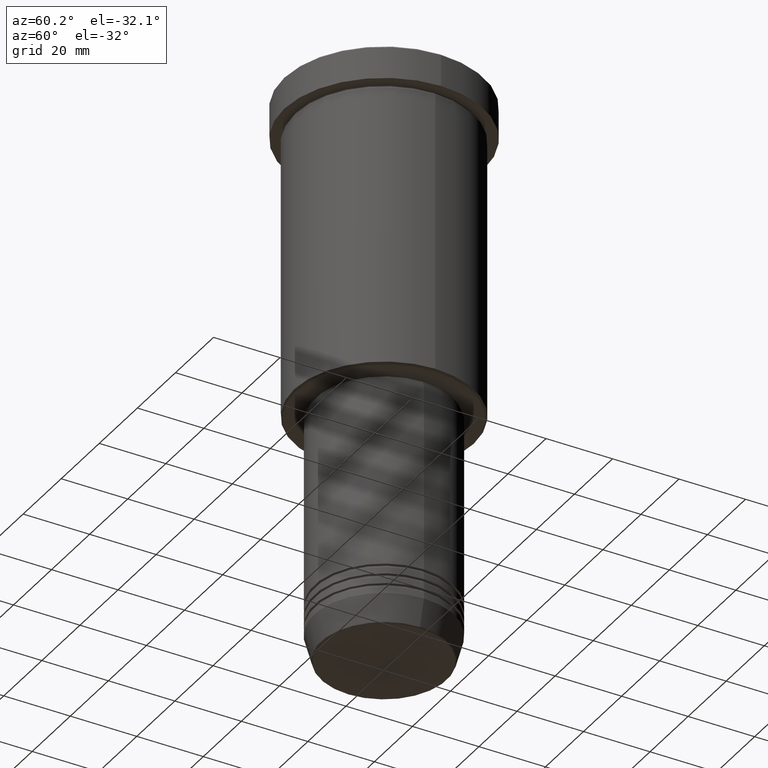
[diagram: clean part render]
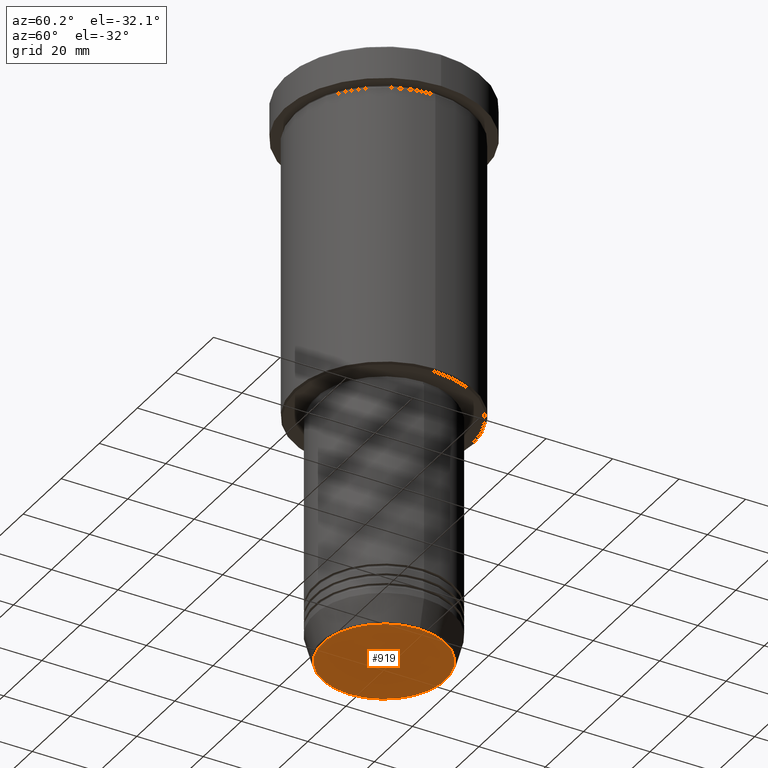
[diagram: same view with one face highlighted and labeled with its STEP entity id]
A machine part, auxiliary view. The second image highlights one B-rep face of the part: STEP entity #919.
In plain terms, the highlighted planar face has unit normal (0, -0, 1).
Its self-contained STEP definition (entity closure, byte-faithful):
#31 = AXIS2_PLACEMENT_3D ( 'NONE', #1020, #1114, #116 ) ;
#61 = DIRECTION ( 'NONE',  ( 1.000000000000000000, 0.000000000000000000, 0.000000000000000000 ) ) ;
#116 = DIRECTION ( 'NONE',  ( 1.000000000000000000, 0.000000000000000000, 0.000000000000000000 ) ) ;
#149 = DIRECTION ( 'NONE',  ( 0.000000000000000000, -0.000000000000000000, 1.000000000000000000 ) ) ;
#280 = EDGE_CURVE ( 'NONE', #920, #417, #454, .T. ) ;
#417 = VERTEX_POINT ( 'NONE', #1036 ) ;
#454 = CIRCLE ( 'NONE', #591, 18.47274296656154391 ) ;
#458 = CIRCLE ( 'NONE', #31, 18.47274296656154391 ) ;
#469 = DIRECTION ( 'NONE',  ( 1.000000000000000000, 0.000000000000000000, 0.000000000000000000 ) ) ;
#515 = FACE_OUTER_BOUND ( 'NONE', #1000, .T. ) ;
#591 = AXIS2_PLACEMENT_3D ( 'NONE', #1013, #924, #469 ) ;
#610 = CARTESIAN_POINT ( 'NONE',  ( 18.47274296656154391, 0.000000000000000000, -170.9999999999999716 ) ) ;
#633 = ORIENTED_EDGE ( 'NONE', *, *, #280, .T. ) ;
#643 = ORIENTED_EDGE ( 'NONE', *, *, #1071, .T. ) ;
#883 = PLANE ( 'NONE',  #988 ) ;
#919 = ADVANCED_FACE ( 'NONE', ( #515 ), #883, .F. ) ;
#920 = VERTEX_POINT ( 'NONE', #610 ) ;
#924 = DIRECTION ( 'NONE',  ( 0.000000000000000000, 0.000000000000000000, -1.000000000000000000 ) ) ;
#965 = CARTESIAN_POINT ( 'NONE',  ( 0.000000000000000000, 0.000000000000000000, -170.9999999999999716 ) ) ;
#988 = AXIS2_PLACEMENT_3D ( 'NONE', #965, #149, #61 ) ;
#1000 = EDGE_LOOP ( 'NONE', ( #633, #643 ) ) ;
#1013 = CARTESIAN_POINT ( 'NONE',  ( 0.000000000000000000, 0.000000000000000000, -170.9999999999999716 ) ) ;
#1020 = CARTESIAN_POINT ( 'NONE',  ( 0.000000000000000000, 0.000000000000000000, -170.9999999999999716 ) ) ;
#1036 = CARTESIAN_POINT ( 'NONE',  ( -18.47274296656154391, 2.291831503831604046E-15, -170.9999999999999716 ) ) ;
#1071 = EDGE_CURVE ( 'NONE', #417, #920, #458, .T. ) ;
#1114 = DIRECTION ( 'NONE',  ( 0.000000000000000000, 0.000000000000000000, -1.000000000000000000 ) ) ;